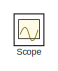
[diagram: root canvas - part 1/3, top left region]
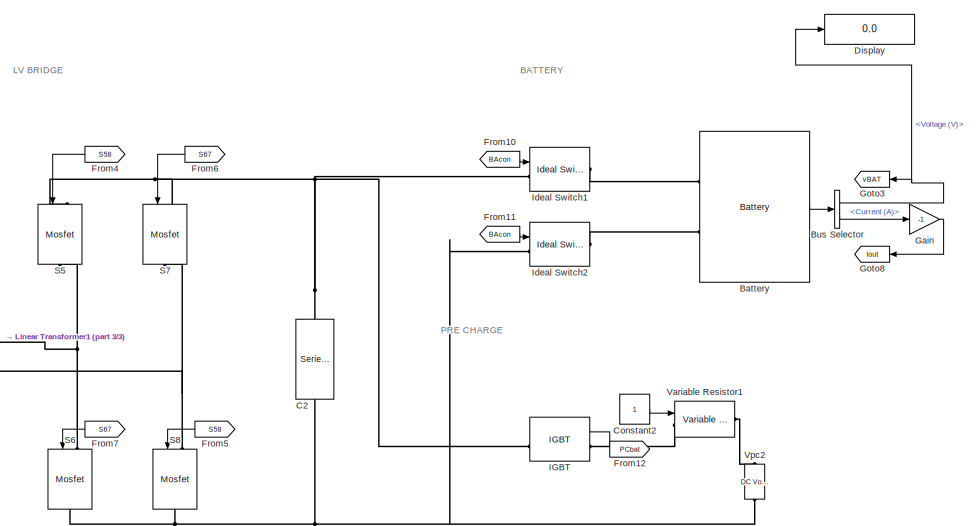
[diagram: root canvas - part 2/3, bottom right region]
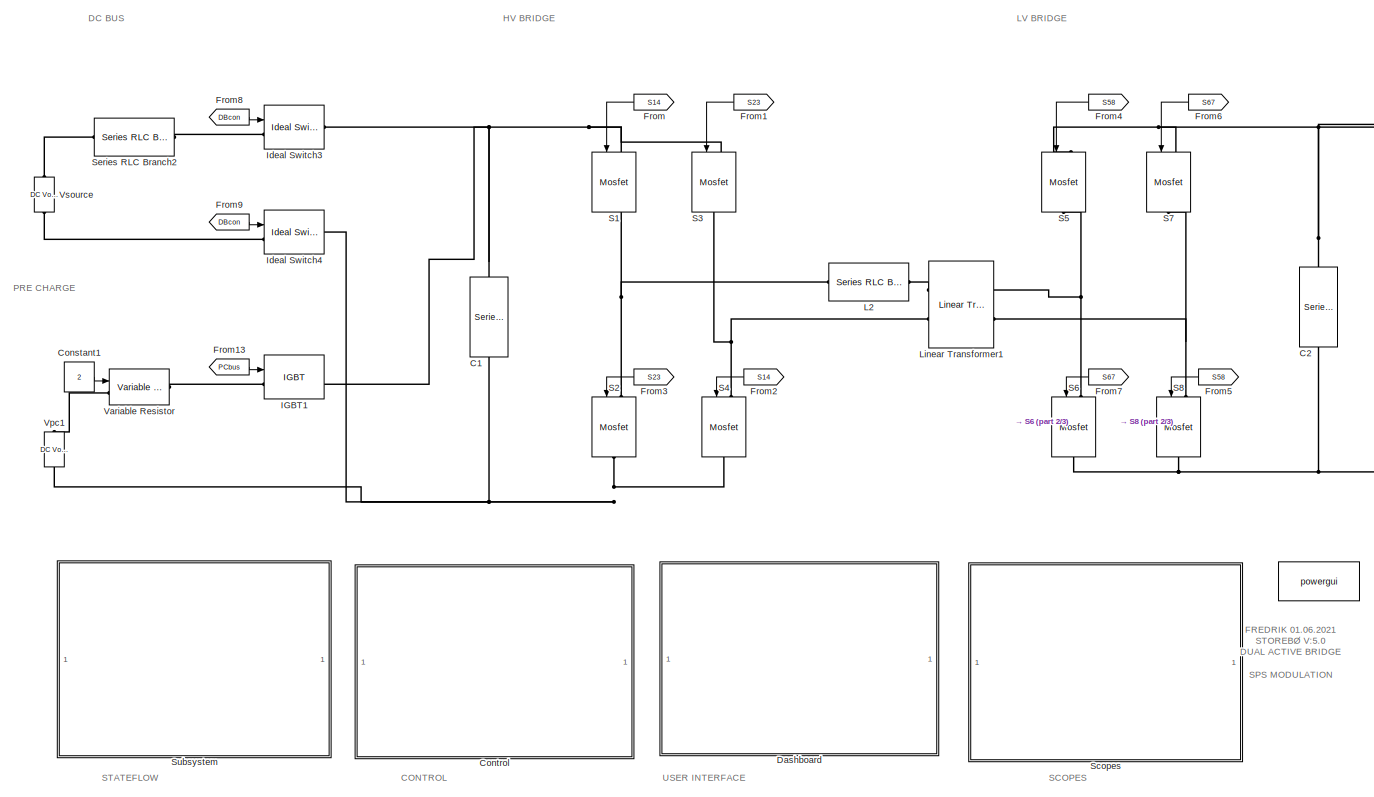
[diagram: root canvas - part 3/3, bottom right region]
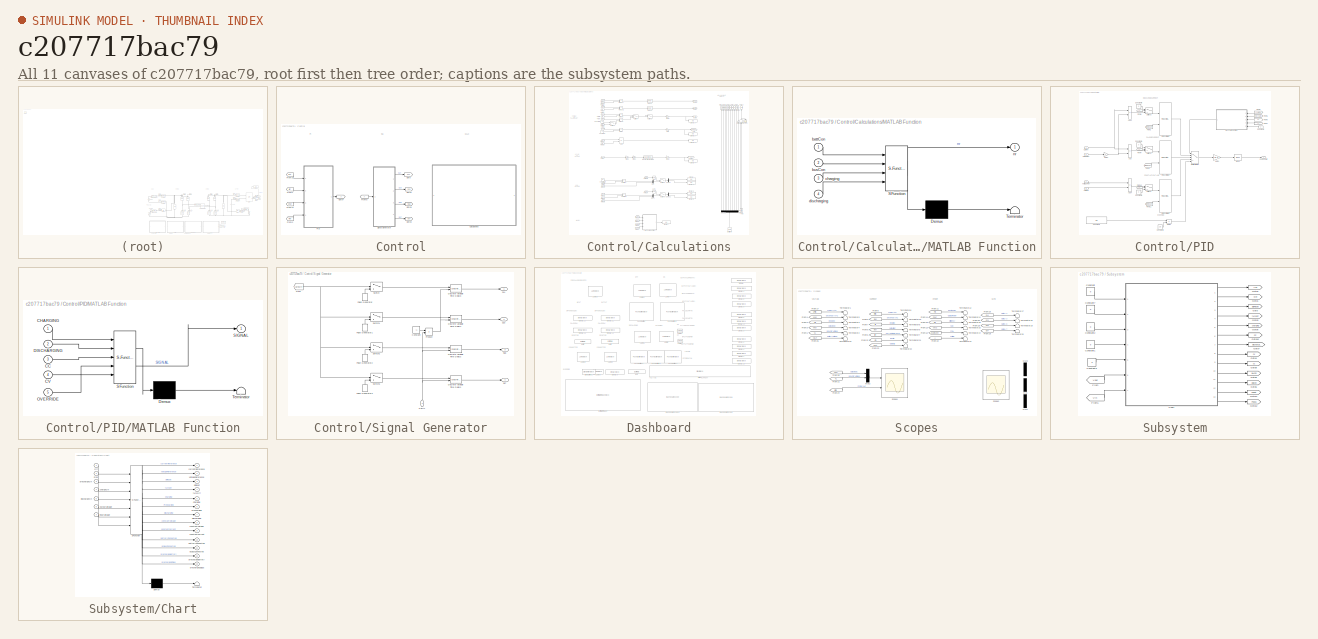
[diagram: thumbnail index - all 11 canvases of the model, root first then tree order]
MODEL slx_c207717bac79
KIND model
CONFIG AbsTol = auto
CONFIG EnableMultiTasking = off
CONFIG FixedStep = auto
CONFIG MaxStep = auto
CONFIG MinStep = auto
CONFIG RelTol = 1e-3
CONFIG SampleTimeConstraint = Unconstrained
CONFIG Solver = VariableStepAuto
CONFIG SolverName = VariableStepAuto
CONFIG StartTime = 0.0
CONFIG StopTime = 1
BLOCK [Reference]    REF=powerlib/powergui
  Ports = []
  Priority = 1
  SourceBlock = powerlib/powergui
  SourceProductBaseCode = PS
  SourceType = PSB option menu block
BLOCK [Reference] Battery  REF=electricdrivelib/Extra Sources/Battery
  Ports = [0, 1, 0, 0, 0, 2]
  SourceBlock = electricdrivelib/Extra Sources/Battery
  SourceProductBaseCode = PS
  SourceType = Battery
BLOCK [BusSelector] Bus Selector
  OutputSignals = Voltage (V),Current (A)
  Ports = [1, 2]
BLOCK [Reference] C1  REF=powerlib/Elements/Series RLC Branch
  NameLocation = left
  Ports = [0, 0, 0, 0, 0, 1, 1]
  SourceBlock = powerlib/Elements/Series RLC Branch
  SourceProductBaseCode = PS
  SourceType = Series RLC Branch
BLOCK [Reference] C2  REF=powerlib/Elements/Series RLC Branch
  NameLocation = right
  Ports = [0, 0, 0, 0, 0, 1, 1]
  SourceBlock = powerlib/Elements/Series RLC Branch
  SourceProductBaseCode = PS
  SourceType = Series RLC Branch
BLOCK [Constant] Constant1
  Value = 2
BLOCK [Constant] Constant2
BLOCK [SubSystem] Control
  Ports = []
  RequestExecContextInheritance = off
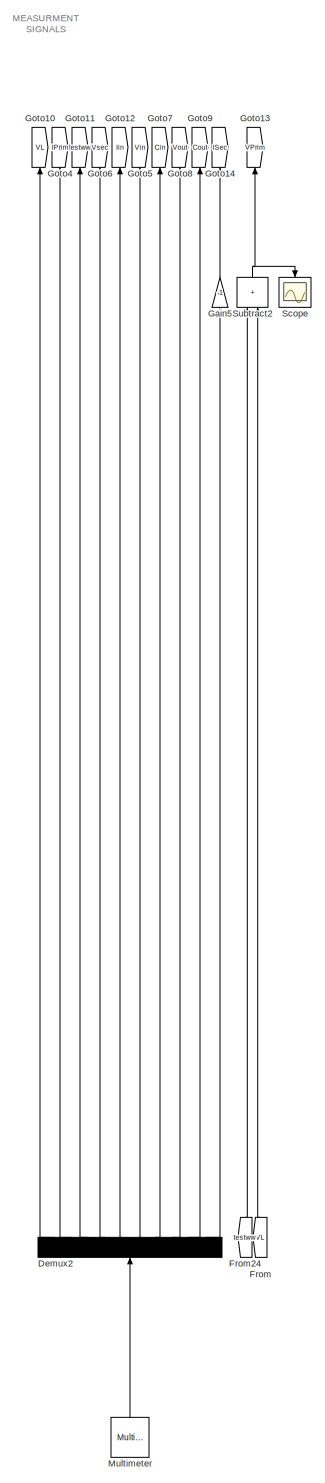
[diagram: Control/Calculations - part 1/3, right side, full height]
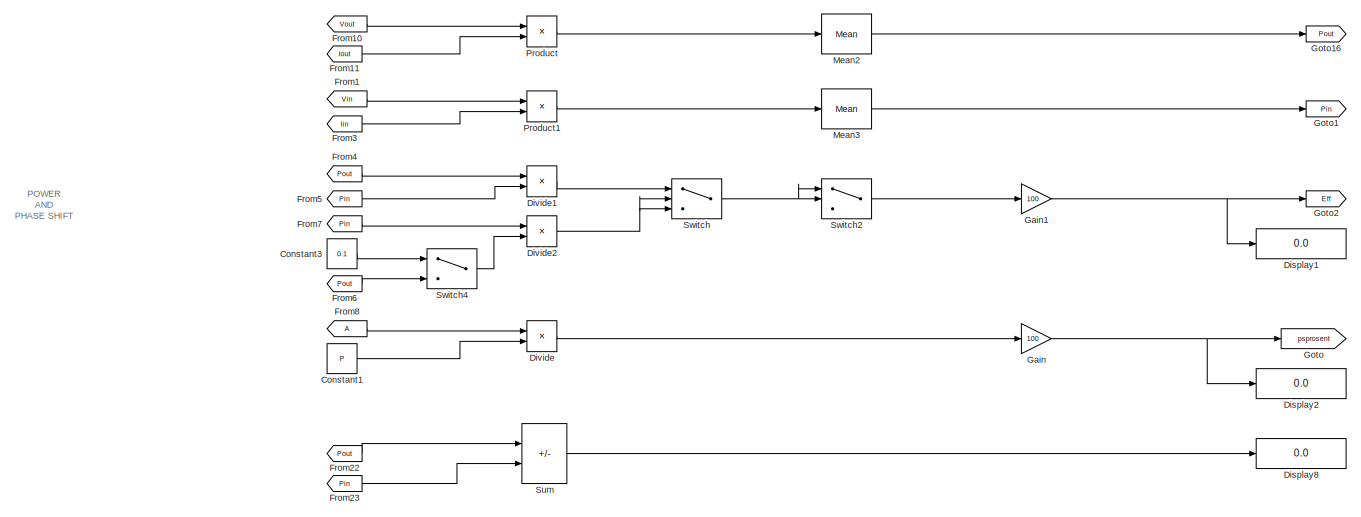
[diagram: Control/Calculations - part 2/3, top center region]
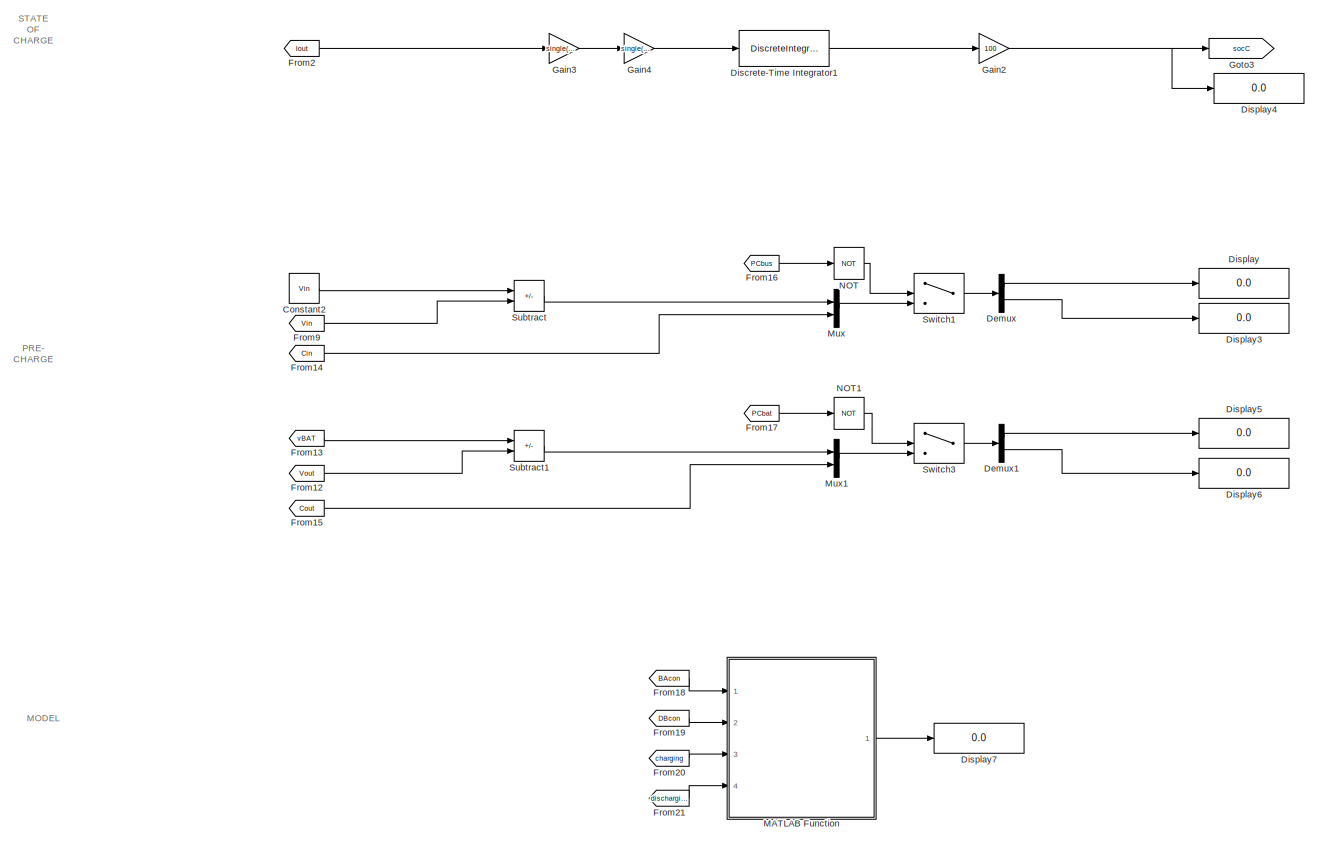
[diagram: Control/Calculations - part 3/3, bottom center region]
BLOCK [SubSystem] Control/Calculations
  Ports = []
  RequestExecContextInheritance = off
BLOCK [Constant] Control/Calculations/Constant1
  Value = P
BLOCK [Constant] Control/Calculations/Constant2
  Value = Vin
BLOCK [Constant] Control/Calculations/Constant3
  Value = 0.1
BLOCK [Demux] Control/Calculations/Demux
  Outputs = 2
  Ports = [1, 2]
BLOCK [Demux] Control/Calculations/Demux1
  Outputs = 2
  Ports = [1, 2]
BLOCK [Demux] Control/Calculations/Demux2
  NameLocation = right
  Outputs = 10
  Ports = [1, 10]
BLOCK [DiscreteIntegrator] Control/Calculations/Discrete-Time Integrator1
  ICPrevOutput = DiscIntNeverNeededParam
  ICPrevScaledInput = DiscIntNeverNeededParam
  InitialCondition = single(SOCInit)
  InitialConditionSetting = Auto
  LimitOutput = on
  LowerSaturationLimit = 0
  Ports = [1, 1]
  SampleTime = -1
  UpperSaturationLimit = 1
BLOCK [Display] Control/Calculations/Display
  Decimation = 1
  Ports = [1]
BLOCK [Display] Control/Calculations/Display1
  Decimation = 1
  Ports = [1]
BLOCK [Display] Control/Calculations/Display2
  Decimation = 1
  Ports = [1]
BLOCK [Display] Control/Calculations/Display3
  Decimation = 1
  Ports = [1]
BLOCK [Display] Control/Calculations/Display4
  Decimation = 1
  Ports = [1]
BLOCK [Display] Control/Calculations/Display5
  Decimation = 1
  Ports = [1]
BLOCK [Display] Control/Calculations/Display6
  Decimation = 1
  Ports = [1]
BLOCK [Display] Control/Calculations/Display7
  Decimation = 1
  Ports = [1]
BLOCK [Display] Control/Calculations/Display8
  Decimation = 1
  Ports = [1]
BLOCK [Product] Control/Calculations/Divide
  Inputs = */
  Ports = [2, 1]
BLOCK [Product] Control/Calculations/Divide1
  Inputs = */
  Ports = [2, 1]
BLOCK [Product] Control/Calculations/Divide2
  Inputs = */
  Ports = [2, 1]
BLOCK [From] Control/Calculations/From
  GotoTag = VL
  NameLocation = right
  TagVisibility = global
BLOCK [From] Control/Calculations/From1
  GotoTag = Vin
  TagVisibility = global
BLOCK [From] Control/Calculations/From10
  GotoTag = Vout
  TagVisibility = global
BLOCK [From] Control/Calculations/From11
  GotoTag = Iout
  TagVisibility = global
BLOCK [From] Control/Calculations/From12
  GotoTag = Vout
  TagVisibility = global
BLOCK [From] Control/Calculations/From13
  GotoTag = vBAT
  TagVisibility = global
BLOCK [From] Control/Calculations/From14
  GotoTag = Cin
  TagVisibility = global
BLOCK [From] Control/Calculations/From15
  GotoTag = Cout
  TagVisibility = global
BLOCK [From] Control/Calculations/From16
  GotoTag = PCbus
  TagVisibility = global
BLOCK [From] Control/Calculations/From17
  GotoTag = PCbat
  TagVisibility = global
BLOCK [From] Control/Calculations/From18
  GotoTag = BAcon
  TagVisibility = global
BLOCK [From] Control/Calculations/From19
  GotoTag = DBcon
  TagVisibility = global
BLOCK [From] Control/Calculations/From2
  GotoTag = Iout
  TagVisibility = global
BLOCK [From] Control/Calculations/From20
  GotoTag = charging
  TagVisibility = global
BLOCK [From] Control/Calculations/From21
  GotoTag = discharging
  TagVisibility = global
BLOCK [From] Control/Calculations/From22
  GotoTag = Pout
  TagVisibility = global
BLOCK [From] Control/Calculations/From23
  GotoTag = Pin
  TagVisibility = global
BLOCK [From] Control/Calculations/From24
  GotoTag = testww
  NameLocation = right
  TagVisibility = global
BLOCK [From] Control/Calculations/From3
  GotoTag = Iin
  TagVisibility = global
BLOCK [From] Control/Calculations/From4
  GotoTag = Pout
  TagVisibility = global
BLOCK [From] Control/Calculations/From5
  GotoTag = Pin
  TagVisibility = global
BLOCK [From] Control/Calculations/From6
  GotoTag = Pout
  TagVisibility = global
BLOCK [From] Control/Calculations/From7
  GotoTag = Pin
  TagVisibility = global
BLOCK [From] Control/Calculations/From8
  TagVisibility = global
BLOCK [From] Control/Calculations/From9
  GotoTag = Vin
  TagVisibility = global
BLOCK [Gain] Control/Calculations/Gain
  Gain = 100
BLOCK [Gain] Control/Calculations/Gain1
  Gain = 100
BLOCK [Gain] Control/Calculations/Gain2
  Gain = 100
BLOCK [Gain] Control/Calculations/Gain3
  Gain = single(1/3600)
BLOCK [Gain] Control/Calculations/Gain4
  Gain = single(1/23.9)
BLOCK [Gain] Control/Calculations/Gain5
  Gain = -1
  NameLocation = right
BLOCK [Goto] Control/Calculations/Goto
  GotoTag = psprosent
  TagVisibility = global
BLOCK [Goto] Control/Calculations/Goto1
  GotoTag = Pin
  TagVisibility = global
BLOCK [Goto] Control/Calculations/Goto10
  GotoTag = VL
  NameLocation = right
  TagVisibility = global
BLOCK [Goto] Control/Calculations/Goto11
  GotoTag = testww
  NameLocation = right
  TagVisibility = global
BLOCK [Goto] Control/Calculations/Goto12
  GotoTag = Iin
  NameLocation = right
  TagVisibility = global
BLOCK [Goto] Control/Calculations/Goto13
  GotoTag = VPrim
  NameLocation = right
  TagVisibility = global
BLOCK [Goto] Control/Calculations/Goto14
  GotoTag = ISec
  NameLocation = right
  TagVisibility = global
BLOCK [Goto] Control/Calculations/Goto16
  GotoTag = Pout
  TagVisibility = global
BLOCK [Goto] Control/Calculations/Goto2
  GotoTag = Eff
  TagVisibility = global
BLOCK [Goto] Control/Calculations/Goto3
  GotoTag = socC
  TagVisibility = global
BLOCK [Goto] Control/Calculations/Goto4
  GotoTag = IPrim
  NameLocation = right
  TagVisibility = global
BLOCK [Goto] Control/Calculations/Goto5
  GotoTag = Vin
  NameLocation = right
  TagVisibility = global
BLOCK [Goto] Control/Calculations/Goto6
  GotoTag = Vsec
  NameLocation = right
  TagVisibility = global
BLOCK [Goto] Control/Calculations/Goto7
  GotoTag = Cin
  NameLocation = right
  TagVisibility = global
BLOCK [Goto] Control/Calculations/Goto8
  GotoTag = Vout
  NameLocation = right
  TagVisibility = global
BLOCK [Goto] Control/Calculations/Goto9
  GotoTag = Cout
  NameLocation = right
  TagVisibility = global
BLOCK [SubSystem] Control/Calculations/MATLAB Function
  ErrorFcn = Stateflow.Translate.translate
  PermitHierarchicalResolution = ExplicitOnly
  Ports = [4, 1]
  RequestExecContextInheritance = off
  SFBlockType = MATLAB Function
  TreatAsAtomicUnit = on
BLOCK [Demux] Control/Calculations/MATLAB Function/ Demux 
  Outputs = 1
  Ports = [1, 1]
BLOCK [S-Function] Control/Calculations/MATLAB Function/ SFunction 
  EnableBusSupport = on
  FunctionName = sf_sfun
  PortCounts = [4 2]
  Ports = [4, 2]
  SFcnIsStateOwnerBlock = off
  SFunctionDeploymentMode = off
  Tag = Stateflow S-Function 1
BLOCK [Terminator] Control/Calculations/MATLAB Function/ Terminator 
BLOCK [Inport] Control/Calculations/MATLAB Function/battCon
BLOCK [Inport] Control/Calculations/MATLAB Function/busCon
  Port = 2
BLOCK [Inport] Control/Calculations/MATLAB Function/charging
  Port = 3
BLOCK [Inport] Control/Calculations/MATLAB Function/discharging
  Port = 4
BLOCK [Outport] Control/Calculations/MATLAB Function/nr
BLOCK [Reference] Control/Calculations/Mean2  REF=powerlib_meascontrol/Measurements/Mean
  Ports = [1, 1]
  SourceBlock = powerlib_meascontrol/Measurements/Mean
  SourceProductBaseCode = PS
  SourceType = Mean
BLOCK [Reference] Control/Calculations/Mean3  REF=powerlib_meascontrol/Measurements/Mean
  Ports = [1, 1]
  SourceBlock = powerlib_meascontrol/Measurements/Mean
  SourceProductBaseCode = PS
  SourceType = Mean
BLOCK [Reference] Control/Calculations/Multimeter  REF=powerlib/Measurements/Multimeter
  NameLocation = right
  Ports = [0, 1]
  SourceBlock = powerlib/Measurements/Multimeter
  SourceProductBaseCode = PS
  SourceType = MultimeterPSB
BLOCK [Mux] Control/Calculations/Mux
  DisplayOption = bar
  Inputs = 2
  Ports = [2, 1]
BLOCK [Mux] Control/Calculations/Mux1
  DisplayOption = bar
  Inputs = 2
  Ports = [2, 1]
BLOCK [Logic] Control/Calculations/NOT
  AllPortsSameDT = off
  IconShape = distinctive
  Operator = NOT
  OutDataTypeStr = boolean
  Ports = [1, 1]
BLOCK [Logic] Control/Calculations/NOT1
  AllPortsSameDT = off
  IconShape = distinctive
  Operator = NOT
  OutDataTypeStr = boolean
  Ports = [1, 1]
BLOCK [Product] Control/Calculations/Product
  Ports = [2, 1]
BLOCK [Product] Control/Calculations/Product1
  Ports = [2, 1]
BLOCK [Scope] Control/Calculations/Scope
  Floating = off
  NameLocation = left
  NumInputPorts = 1
  Ports = [1]
  ScopeSpecificationString = Simulink.scopes.TimeScopeBlockCfg('CurrentConfiguration', extmgr.ConfigurationSet(extmgr.Configuration('Core','General UI',true),extmgr.Configuration('Core','Source UI',true),extmgr.Configuration('Sources','WiredSimulink',true,'DataLoggingVariableName','ScopeData1'),extmgr.Configuration('Visuals','Time Domain',true,'SerializedDisplays',{struct('MinYLimReal','-1.00000','MaxYLimReal','1.00000','YLab...<+1423ch>
BLOCK [Sum] Control/Calculations/Subtract
  IconShape = rectangular
  Inputs = +-
  Ports = [2, 1]
BLOCK [Sum] Control/Calculations/Subtract1
  IconShape = rectangular
  Inputs = +-
  Ports = [2, 1]
BLOCK [Sum] Control/Calculations/Subtract2
  IconShape = rectangular
  NameLocation = right
  Ports = [2, 1]
BLOCK [Sum] Control/Calculations/Sum
  IconShape = rectangular
  Inputs = |+-
  Ports = [2, 1]
BLOCK [Switch] Control/Calculations/Switch
  Criteria = u2 > Threshold
  InputSameDT = off
  SaturateOnIntegerOverflow = off
  Threshold = 1
BLOCK [Switch] Control/Calculations/Switch1
  Criteria = u2 > Threshold
  InputSameDT = off
  SaturateOnIntegerOverflow = off
BLOCK [Switch] Control/Calculations/Switch2
  Criteria = u2 > Threshold
  InputSameDT = off
  SaturateOnIntegerOverflow = off
BLOCK [Switch] Control/Calculations/Switch3
  Criteria = u2 > Threshold
  InputSameDT = off
  SaturateOnIntegerOverflow = off
BLOCK [Switch] Control/Calculations/Switch4
  Criteria = u2 ~= 0
  InputSameDT = off
  SaturateOnIntegerOverflow = off
  Threshold = 1
BLOCK [From] Control/From1
  GotoTag = Iref
  TagVisibility = global
BLOCK [From] Control/From10
  GotoTag = Iout
  TagVisibility = global
BLOCK [From] Control/From12
  GotoTag = Vout
  TagVisibility = global
BLOCK [From] Control/From2
  GotoTag = Vref
  TagVisibility = global
BLOCK [From] Control/From8
  TagVisibility = global
BLOCK [Goto] Control/Goto
  GotoTag = S14
  TagVisibility = global
BLOCK [Goto] Control/Goto1
  GotoTag = S23
  TagVisibility = global
BLOCK [Goto] Control/Goto3
  GotoTag = S67
  TagVisibility = global
BLOCK [Goto] Control/Goto7
  TagVisibility = global
BLOCK [Goto] Control/Goto9
  GotoTag = S58
  TagVisibility = global
BLOCK [SubSystem] Control/PID
  Ports = [4, 1]
  RequestExecContextInheritance = off
BLOCK [Outport] Control/PID/ Phase Shift
BLOCK [Sum] Control/PID/Add
  IconShape = rectangular
  Inputs = -+
  Ports = [2, 1]
BLOCK [Sum] Control/PID/Add2
  IconShape = rectangular
  Inputs = -+
  Ports = [2, 1]
BLOCK [Sum] Control/PID/Add4
  IconShape = rectangular
  Inputs = +-
  Ports = [2, 1]
BLOCK [Constant] Control/PID/Constant1
  Value = 25
BLOCK [Constant] Control/PID/Constant2
  NameLocation = top
  Value = 0
BLOCK [Constant] Control/PID/Constant3
  Value = 2.5
BLOCK [Constant] Control/PID/Constant4
  Value = 0
BLOCK [Constant] Control/PID/Constant5
  Value = 0
BLOCK [Constant] Control/PID/Constant6
  Value = 0
BLOCK [Inport] Control/PID/Current
BLOCK [Inport] Control/PID/Current Ref
  Port = 2
BLOCK [Product] Control/PID/Divide
  Inputs = */
  Ports = [2, 1]
BLOCK [From] Control/PID/From1
  GotoTag = pidReset
  TagVisibility = global
BLOCK [From] Control/PID/From11
  GotoTag = pidReset
  TagVisibility = global
BLOCK [From] Control/PID/From12
  GotoTag = cv
  TagVisibility = global
BLOCK [From] Control/PID/From2
  GotoTag = pidReset
  TagVisibility = global
BLOCK [From] Control/PID/From3
  GotoTag = charging
  NameLocation = top
  TagVisibility = global
BLOCK [From] Control/PID/From4
  GotoTag = cv
  TagVisibility = global
BLOCK [From] Control/PID/From5
  GotoTag = discharging
  NameLocation = top
  TagVisibility = global
BLOCK [From] Control/PID/From6
  GotoTag = cc
  NameLocation = top
  TagVisibility = global
BLOCK [From] Control/PID/From7
  GotoTag = cv
  NameLocation = top
  TagVisibility = global
BLOCK [From] Control/PID/From8
  GotoTag = cv
  TagVisibility = global
BLOCK [Gain] Control/PID/Gain1
  Gain = 1e-6
BLOCK [Gain] Control/PID/Gain2
  Gain = -1
BLOCK [SubSystem] Control/PID/MATLAB Function
  ErrorFcn = Stateflow.Translate.translate
  NameLocation = top
  PermitHierarchicalResolution = ExplicitOnly
  Ports = [5, 1]
  RequestExecContextInheritance = off
  SFBlockType = MATLAB Function
  TreatAsAtomicUnit = on
BLOCK [Demux] Control/PID/MATLAB Function/ Demux 
  Outputs = 1
  Ports = [1, 1]
BLOCK [S-Function] Control/PID/MATLAB Function/ SFunction 
  EnableBusSupport = on
  FunctionName = sf_sfun
  PortCounts = [5 2]
  Ports = [5, 2]
  SFcnIsStateOwnerBlock = off
  SFunctionDeploymentMode = off
  Tag = Stateflow S-Function 2
BLOCK [Terminator] Control/PID/MATLAB Function/ Terminator 
BLOCK [Inport] Control/PID/MATLAB Function/CC
  Port = 3
BLOCK [Inport] Control/PID/MATLAB Function/CHARGING
BLOCK [Inport] Control/PID/MATLAB Function/CV
  Port = 4
BLOCK [Inport] Control/PID/MATLAB Function/DISCHARGING
  Port = 2
BLOCK [Inport] Control/PID/MATLAB Function/OVERRIDE
  Port = 5
BLOCK [Outport] Control/PID/MATLAB Function/SIGNAL
BLOCK [Reference] Control/PID/Mean  REF=powerlib_meascontrol/Measurements/Mean
  Ports = [1, 1]
  SourceBlock = powerlib_meascontrol/Measurements/Mean
  SourceProductBaseCode = PS
  SourceType = Mean
BLOCK [MultiPortSwitch] Control/PID/Multiport Switch
  InputSameDT = off
  Inputs = 4
  Ports = [5, 1]
  SaturateOnIntegerOverflow = off
BLOCK [Reference] Control/PID/PID Controller1  REF=simulink/Continuous/PID Controller
  Ports = [2, 1]
  SourceBlock = simulink/Continuous/PID Controller
  SourceProductBaseCode = SL
  SourceType = PID 1dof
BLOCK [Reference] Control/PID/PID Controller2  REF=simulink/Continuous/PID Controller
  Ports = [2, 1]
  SourceBlock = simulink/Continuous/PID Controller
  SourceProductBaseCode = SL
  SourceType = PID 1dof
BLOCK [Reference] Control/PID/PID Controller3  REF=simulink/Continuous/PID Controller
  Ports = [2, 1]
  SourceBlock = simulink/Continuous/PID Controller
  SourceProductBaseCode = SL
  SourceType = PID 1dof
BLOCK [Switch] Control/PID/Switch1
  Criteria = u2 > Threshold
  InputSameDT = off
  NameLocation = top
  SaturateOnIntegerOverflow = off
BLOCK [Switch] Control/PID/Switch2
  Criteria = u2 > Threshold
  InputSameDT = off
  NameLocation = top
  SaturateOnIntegerOverflow = off
BLOCK [Switch] Control/PID/Switch3
  Criteria = u2 > Threshold
  InputSameDT = off
  NameLocation = top
  SaturateOnIntegerOverflow = off
BLOCK [Inport] Control/PID/Voltage
  Port = 3
BLOCK [Inport] Control/PID/Voltage Ref
  Port = 4
BLOCK [SubSystem] Control/Signal Generator
  Ports = [1, 4]
  RequestExecContextInheritance = off
BLOCK [Constant] Control/Signal Generator/Constant
  Value = -1
BLOCK [Inport] Control/Signal Generator/DELAY
BLOCK [Reference] Control/Signal Generator/Discrete Variable Time Delay1  REF=powerlib_meascontrol/Additional Components/Discrete Variable
Time Delay
  Ports = [2, 1]
  SourceBlock = powerlib_meascontrol/Additional Components/Discrete Variable\nTime Delay
  SourceProductBaseCode = PS
  SourceType = Discrete Variable Time Delay
BLOCK [Reference] Control/Signal Generator/Discrete Variable Time Delay2  REF=powerlib_meascontrol/Additional Components/Discrete Variable
Time Delay
  Ports = [2, 1]
  SourceBlock = powerlib_meascontrol/Additional Components/Discrete Variable\nTime Delay
  SourceProductBaseCode = PS
  SourceType = Discrete Variable Time Delay
BLOCK [Reference] Control/Signal Generator/Discrete Variable Time Delay3  REF=powerlib_meascontrol/Additional Components/Discrete Variable
Time Delay
  Ports = [2, 1]
  SourceBlock = powerlib_meascontrol/Additional Components/Discrete Variable\nTime Delay
  SourceProductBaseCode = PS
  SourceType = Discrete Variable Time Delay
BLOCK [Reference] Control/Signal Generator/Discrete Variable Time Delay4  REF=powerlib_meascontrol/Additional Components/Discrete Variable
Time Delay
  Ports = [2, 1]
  SourceBlock = powerlib_meascontrol/Additional Components/Discrete Variable\nTime Delay
  SourceProductBaseCode = PS
  SourceType = Discrete Variable Time Delay
BLOCK [From] Control/Signal Generator/From
  GotoTag = turnOff
  TagVisibility = global
BLOCK [Product] Control/Signal Generator/Product
  Ports = [2, 1]
BLOCK [DiscretePulseGenerator] Control/Signal Generator/Pulse Generator
  NameLocation = right
  Period = P
  Ports = [0, 1]
  PulseType = Time based
  PulseWidth = 49.5
  VectorParams1D = off
BLOCK [DiscretePulseGenerator] Control/Signal Generator/Pulse Generator1
  NameLocation = right
  Period = P
  PhaseDelay = P/2
  Ports = [0, 1]
  PulseType = Time based
  PulseWidth = 49.5
  VectorParams1D = off
BLOCK [DiscretePulseGenerator] Control/Signal Generator/Pulse Generator2
  NameLocation = right
  Period = P
  Ports = [0, 1]
  PulseType = Time based
  PulseWidth = 49.5
BLOCK [DiscretePulseGenerator] Control/Signal Generator/Pulse Generator3
  NameLocation = right
  Period = P
  PhaseDelay = P/2
  Ports = [0, 1]
  PulseType = Time based
  PulseWidth = 49.5
BLOCK [Outport] Control/Signal Generator/S14
  NameLocation = right
BLOCK [Outport] Control/Signal Generator/S23
  NameLocation = right
  Port = 2
BLOCK [Outport] Control/Signal Generator/S58
  NameLocation = right
  Port = 3
BLOCK [Outport] Control/Signal Generator/S67
  NameLocation = right
  Port = 4
BLOCK [Switch] Control/Signal Generator/Switch
  Criteria = u2 > Threshold
  InputSameDT = off
  SaturateOnIntegerOverflow = off
BLOCK [Switch] Control/Signal Generator/Switch1
  Criteria = u2 > Threshold
  InputSameDT = off
  SaturateOnIntegerOverflow = off
BLOCK [Switch] Control/Signal Generator/Switch2
  Criteria = u2 > Threshold
  InputSameDT = off
  SaturateOnIntegerOverflow = off
BLOCK [Switch] Control/Signal Generator/Switch3
  Criteria = u2 > Threshold
  InputSameDT = off
  SaturateOnIntegerOverflow = off
BLOCK [SubSystem] Dashboard
  Ports = []
  RequestExecContextInheritance = off
BLOCK [DashboardScope] Dashboard/Dashboard Scope
  ScaleAtStop = off
  ShowInitialText = off
  TimeSpan = 1
  Ymax = 5
  Ymin = -11
BLOCK [DashboardScope] Dashboard/Dashboard Scope1
  ScaleAtStop = off
  TimeSpan = 1
  Ymax = 200
  Ymin = 160
BLOCK [DisplayBlock] Dashboard/Display
  Format = short
  LabelPosition = Hide
  Transparency = 1
BLOCK [DisplayBlock] Dashboard/Display1
  Format = short
  LabelPosition = Hide
  Transparency = 1
BLOCK [DisplayBlock] Dashboard/Display10
  Format = short
  LabelPosition = Hide
  Transparency = 1
BLOCK [DisplayBlock] Dashboard/Display11
  Format = short
  LabelPosition = Hide
  Transparency = 1
BLOCK [DisplayBlock] Dashboard/Display12
  Format = short
  LabelPosition = Hide
  Transparency = 1
BLOCK [DisplayBlock] Dashboard/Display13
  Format = short
  LabelPosition = Hide
  Transparency = 1
BLOCK [DisplayBlock] Dashboard/Display14
  Format = short
  LabelPosition = Hide
  Transparency = 1
BLOCK [DisplayBlock] Dashboard/Display15
  Format = short
  LabelPosition = Hide
  Transparency = 1
BLOCK [DisplayBlock] Dashboard/Display2
  Format = short
  LabelPosition = Hide
  Transparency = 1
BLOCK [DisplayBlock] Dashboard/Display3
  Format = short
  LabelPosition = Hide
  Transparency = 1
BLOCK [DisplayBlock] Dashboard/Display4
  Format = short
  LabelPosition = Hide
  Transparency = 1
BLOCK [DisplayBlock] Dashboard/Display5
  Format = short
  LabelPosition = Hide
  Transparency = 1
BLOCK [DisplayBlock] Dashboard/Display6
  Format = short
  LabelPosition = Hide
  Transparency = 1
BLOCK [DisplayBlock] Dashboard/Display7
  Format = short
  LabelPosition = Hide
  Transparency = 1
BLOCK [DisplayBlock] Dashboard/Display8
  Format = short
  LabelPosition = Hide
  Transparency = 1
BLOCK [DisplayBlock] Dashboard/Display9
  Format = short
  LabelPosition = Hide
  Transparency = 1
BLOCK [EditField] Dashboard/Edit
  Alignment = Center
  LabelPosition = Hide
  ShowInitialText = on
BLOCK [EditField] Dashboard/Edit1
  Alignment = Center
  LabelPosition = Hide
  ShowInitialText = on
BLOCK [EditField] Dashboard/Edit2
  Alignment = Center
  LabelPosition = Hide
  ShowInitialText = on
BLOCK [LampBlock] Dashboard/Lamp
  LabelPosition = Hide
BLOCK [LampBlock] Dashboard/Lamp1
  LabelPosition = Hide
BLOCK [LampBlock] Dashboard/Lamp2
  LabelPosition = Hide
BLOCK [LampBlock] Dashboard/Lamp3
  LabelPosition = Hide
BLOCK [LampBlock] Dashboard/Lamp4
  LabelPosition = Hide
BLOCK [LampBlock] Dashboard/Lamp5
  LabelPosition = Hide
BLOCK [LampBlock] Dashboard/Lamp6
  LabelPosition = Hide
BLOCK [LampBlock] Dashboard/Lamp7
  LabelPosition = Hide
BLOCK [LampBlock] Dashboard/Lamp8
  LabelPosition = Hide
BLOCK [LampBlock] Dashboard/Lamp9
  LabelPosition = Hide
BLOCK [MultiStateImageBlock] Dashboard/MultiStateImage
  LabelPosition = Hide
  NameLocation = top
BLOCK [PushButtonBlock] Dashboard/Push Button
  ButtonText = DISCONNECT
BLOCK [PushButtonBlock] Dashboard/Push Button1
  ButtonText = CHARGE
BLOCK [PushButtonBlock] Dashboard/Push Button2
  ButtonText = CONNECT
BLOCK [PushButtonBlock] Dashboard/Push Button3
  ButtonText = DISCHARGE
BLOCK [PushButtonBlock] Dashboard/Push Button4
  ButtonText = STOP
BLOCK [SliderSwitchBlock] Dashboard/Slider Switch2
  LabelPosition = Hide
BLOCK [SliderBlock] Dashboard/Slider3
  LabelPosition = Hide
  ScaleMax = 50
  ScaleMin = -50
  TickInterval = 5
BLOCK [Display] Display
  Decimation = 1
  Ports = [1]
BLOCK [From] From
  GotoTag = S14
  NameLocation = top
  TagVisibility = global
BLOCK [From] From1
  GotoTag = S23
  NameLocation = top
  TagVisibility = global
BLOCK [From] From10
  GotoTag = BAcon
  TagVisibility = global
BLOCK [From] From11
  GotoTag = BAcon
  TagVisibility = global
BLOCK [From] From12
  GotoTag = PCbat
  NameLocation = top
  TagVisibility = global
BLOCK [From] From13
  GotoTag = PCbus
  TagVisibility = global
BLOCK [From] From2
  GotoTag = S14
  NameLocation = top
  TagVisibility = global
BLOCK [From] From3
  GotoTag = S23
  NameLocation = top
  TagVisibility = global
BLOCK [From] From4
  GotoTag = S58
  NameLocation = top
  TagVisibility = global
BLOCK [From] From5
  GotoTag = S58
  NameLocation = top
  TagVisibility = global
BLOCK [From] From6
  GotoTag = S67
  NameLocation = top
  TagVisibility = global
BLOCK [From] From7
  GotoTag = S67
  NameLocation = top
  TagVisibility = global
BLOCK [From] From8
  GotoTag = DBcon
  TagVisibility = global
BLOCK [From] From9
  GotoTag = DBcon
  TagVisibility = global
BLOCK [Gain] Gain
  Gain = -1
BLOCK [Goto] Goto3
  GotoTag = vBAT
  NameLocation = top
  TagVisibility = global
BLOCK [Goto] Goto8
  GotoTag = Iout
  NameLocation = top
  TagVisibility = global
BLOCK [Reference] IGBT  REF=powerlib/Power
Electronics/IGBT
  NameLocation = top
  Ports = [1, 1, 0, 0, 0, 1, 1]
  SourceBlock = powerlib/Power\nElectronics/IGBT
  SourceProductBaseCode = PS
  SourceType = IGBT
BLOCK [Reference] IGBT1  REF=powerlib/Power
Electronics/IGBT
  Ports = [1, 1, 0, 0, 0, 1, 1]
  SourceBlock = powerlib/Power\nElectronics/IGBT
  SourceProductBaseCode = PS
  SourceType = IGBT
BLOCK [Reference] Ideal Switch1  REF=powerlib/Power
Electronics/Ideal Switch
  Ports = [1, 0, 0, 0, 0, 1, 1]
  SourceBlock = powerlib/Power\nElectronics/Ideal Switch
  SourceProductBaseCode = PS
  SourceType = Ideal Switch
BLOCK [Reference] Ideal Switch2  REF=powerlib/Power
Electronics/Ideal Switch
  Ports = [1, 0, 0, 0, 0, 1, 1]
  SourceBlock = powerlib/Power\nElectronics/Ideal Switch
  SourceProductBaseCode = PS
  SourceType = Ideal Switch
BLOCK [Reference] Ideal Switch3  REF=powerlib/Power
Electronics/Ideal Switch
  Ports = [1, 0, 0, 0, 0, 1, 1]
  SourceBlock = powerlib/Power\nElectronics/Ideal Switch
  SourceProductBaseCode = PS
  SourceType = Ideal Switch
BLOCK [Reference] Ideal Switch4  REF=powerlib/Power
Electronics/Ideal Switch
  Ports = [1, 0, 0, 0, 0, 1, 1]
  SourceBlock = powerlib/Power\nElectronics/Ideal Switch
  SourceProductBaseCode = PS
  SourceType = Ideal Switch
BLOCK [Reference] L2  REF=powerlib/Elements/Series RLC Branch
  Ports = [0, 0, 0, 0, 0, 1, 1]
  SourceBlock = powerlib/Elements/Series RLC Branch
  SourceProductBaseCode = PS
  SourceType = Series RLC Branch
BLOCK [Reference] Linear Transformer1  REF=powerlib/Elements/Linear Transformer
  Ports = [0, 0, 0, 0, 0, 2, 2]
  SourceBlock = powerlib/Elements/Linear Transformer
  SourceProductBaseCode = PS
  SourceType = Linear Transformer
BLOCK [Reference] S1  REF=powerlib/Power
Electronics/Mosfet
  NameLocation = left
  Ports = [1, 1, 0, 0, 0, 1, 1]
  SourceBlock = powerlib/Power\nElectronics/Mosfet
  SourceProductBaseCode = PS
  SourceType = Mosfet
BLOCK [Reference] S2  REF=powerlib/Power
Electronics/Mosfet
  NameLocation = left
  Ports = [1, 0, 0, 0, 0, 1, 1]
  SourceBlock = powerlib/Power\nElectronics/Mosfet
  SourceProductBaseCode = PS
  SourceType = Mosfet
BLOCK [Reference] S3  REF=powerlib/Power
Electronics/Mosfet
  NameLocation = left
  Ports = [1, 0, 0, 0, 0, 1, 1]
  SourceBlock = powerlib/Power\nElectronics/Mosfet
  SourceProductBaseCode = PS
  SourceType = Mosfet
BLOCK [Reference] S4  REF=powerlib/Power
Electronics/Mosfet
  NameLocation = left
  Ports = [1, 0, 0, 0, 0, 1, 1]
  SourceBlock = powerlib/Power\nElectronics/Mosfet
  SourceProductBaseCode = PS
  SourceType = Mosfet
BLOCK [Reference] S5  REF=powerlib/Power
Electronics/Mosfet
  NameLocation = left
  Ports = [1, 0, 0, 0, 0, 1, 1]
  SourceBlock = powerlib/Power\nElectronics/Mosfet
  SourceProductBaseCode = PS
  SourceType = Mosfet
BLOCK [Reference] S6  REF=powerlib/Power
Electronics/Mosfet
  NameLocation = left
  Ports = [1, 0, 0, 0, 0, 1, 1]
  SourceBlock = powerlib/Power\nElectronics/Mosfet
  SourceProductBaseCode = PS
  SourceType = Mosfet
BLOCK [Reference] S7  REF=powerlib/Power
Electronics/Mosfet
  NameLocation = left
  Ports = [1, 0, 0, 0, 0, 1, 1]
  SourceBlock = powerlib/Power\nElectronics/Mosfet
  SourceProductBaseCode = PS
  SourceType = Mosfet
BLOCK [Reference] S8  REF=powerlib/Power
Electronics/Mosfet
  NameLocation = left
  Ports = [1, 0, 0, 0, 0, 1, 1]
  SourceBlock = powerlib/Power\nElectronics/Mosfet
  SourceProductBaseCode = PS
  SourceType = Mosfet
BLOCK [Scope] Scope
  Floating = off
  IOType = viewer
  NumInputPorts = 1
  Ports = []
  ScopeSpecificationString = Simulink.scopes.TimeScopeBlockCfg('CurrentConfiguration', extmgr.ConfigurationSet(extmgr.Configuration('Core','General UI',true),extmgr.Configuration('Core','Source UI',true),extmgr.Configuration('Sources','WiredSimulink',true,'DataLoggingVariableName','ScopeData2'),extmgr.Configuration('Visuals','Time Domain',true,'SerializedDisplays',{struct('MinYLimReal','-10.00000','MaxYLimReal','10.00000','YL...<+1365ch>
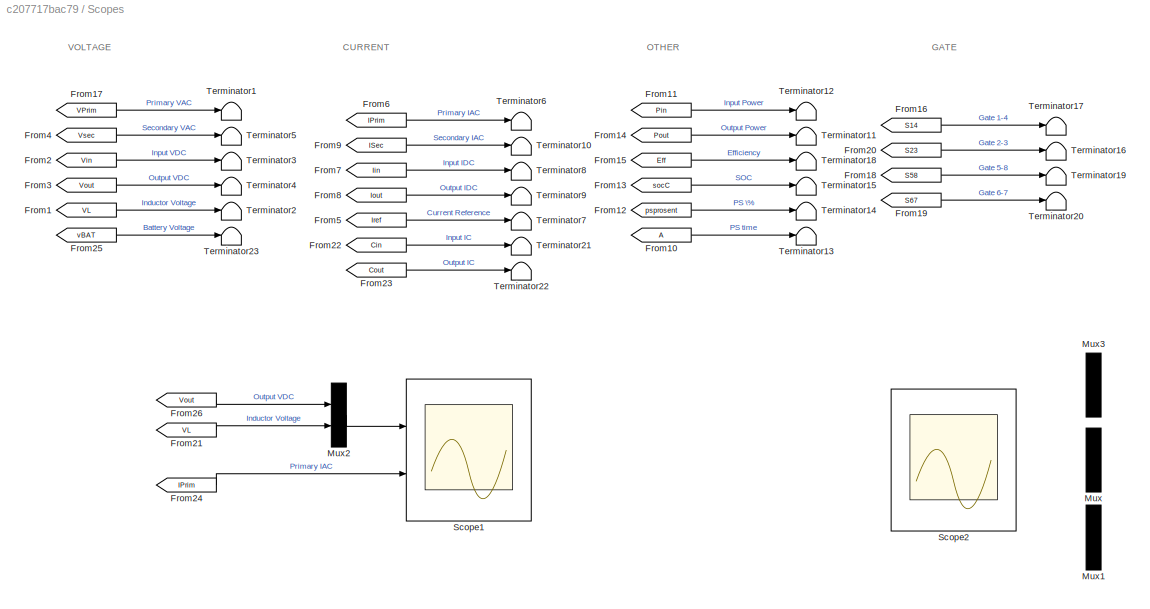
BLOCK [SubSystem] Scopes
  Ports = []
  RequestExecContextInheritance = off
BLOCK [From] Scopes/From1
  GotoTag = VL
  TagVisibility = global
BLOCK [From] Scopes/From10
  TagVisibility = global
BLOCK [From] Scopes/From11
  GotoTag = Pin
  TagVisibility = global
BLOCK [From] Scopes/From12
  GotoTag = psprosent
  TagVisibility = global
BLOCK [From] Scopes/From13
  GotoTag = socC
  TagVisibility = global
BLOCK [From] Scopes/From14
  GotoTag = Pout
  TagVisibility = global
BLOCK [From] Scopes/From15
  GotoTag = Eff
  TagVisibility = global
BLOCK [From] Scopes/From16
  GotoTag = S14
  TagVisibility = global
BLOCK [From] Scopes/From17
  GotoTag = VPrim
  TagVisibility = global
BLOCK [From] Scopes/From18
  GotoTag = S58
  TagVisibility = global
BLOCK [From] Scopes/From19
  GotoTag = S67
  TagVisibility = global
BLOCK [From] Scopes/From2
  GotoTag = Vin
  TagVisibility = global
BLOCK [From] Scopes/From20
  GotoTag = S23
  TagVisibility = global
BLOCK [From] Scopes/From21
  GotoTag = VL
  TagVisibility = global
BLOCK [From] Scopes/From22
  GotoTag = Cin
  TagVisibility = global
BLOCK [From] Scopes/From23
  GotoTag = Cout
  TagVisibility = global
BLOCK [From] Scopes/From24
  GotoTag = IPrim
  TagVisibility = global
BLOCK [From] Scopes/From25
  GotoTag = vBAT
  TagVisibility = global
BLOCK [From] Scopes/From26
  GotoTag = Vout
  TagVisibility = global
BLOCK [From] Scopes/From3
  GotoTag = Vout
  TagVisibility = global
BLOCK [From] Scopes/From4
  GotoTag = Vsec
  TagVisibility = global
BLOCK [From] Scopes/From5
  GotoTag = Iref
  TagVisibility = global
BLOCK [From] Scopes/From6
  GotoTag = IPrim
  TagVisibility = global
BLOCK [From] Scopes/From7
  GotoTag = Iin
  TagVisibility = global
BLOCK [From] Scopes/From8
  GotoTag = Iout
  TagVisibility = global
BLOCK [From] Scopes/From9
  GotoTag = ISec
  TagVisibility = global
BLOCK [Mux] Scopes/Mux
  DisplayOption = bar
  Inputs = 3
  Ports = [3, 1]
BLOCK [Mux] Scopes/Mux1
  DisplayOption = bar
  Ports = [4, 1]
BLOCK [Mux] Scopes/Mux2
  DisplayOption = bar
  Inputs = 2
  Ports = [2, 1]
BLOCK [Mux] Scopes/Mux3
  DisplayOption = bar
  Inputs = 2
  Ports = [2, 1]
BLOCK [Scope] Scopes/Scope1
  Floating = off
  NumInputPorts = 2
  Ports = [2]
  ScopeSpecificationString = Simulink.scopes.TimeScopeBlockCfg('CurrentConfiguration', extmgr.ConfigurationSet(extmgr.Configuration('Core','General UI',true,'FigureColor',[1 1 1]),extmgr.Configuration('Core','Source UI',true),extmgr.Configuration('Sources','WiredSimulink',true,'DataLoggingVariableName','current','DataLoggingMaxPoints','20000','DataLoggingDecimation','167'),extmgr.Configuration('Visuals','Time Domain',true,'Se...<+1840ch>
BLOCK [Scope] Scopes/Scope2
  Floating = off
  NumInputPorts = 1
  Ports = [1]
  ScopeSpecificationString = Simulink.scopes.TimeScopeBlockCfg('CurrentConfiguration', extmgr.ConfigurationSet(extmgr.Configuration('Core','General UI',true,'FigureColor',[1 1 1]),extmgr.Configuration('Core','Source UI',true),extmgr.Configuration('Sources','WiredSimulink',true,'DataLoggingVariableName','phaseShift','DataLoggingMaxPoints','10000','DataLoggingDecimation','40','DataLogging',true,'DataLoggingDecimateData',true),e...<+1802ch>
BLOCK [Terminator] Scopes/Terminator1
BLOCK [Terminator] Scopes/Terminator10
BLOCK [Terminator] Scopes/Terminator11
BLOCK [Terminator] Scopes/Terminator12
BLOCK [Terminator] Scopes/Terminator13
BLOCK [Terminator] Scopes/Terminator14
BLOCK [Terminator] Scopes/Terminator15
BLOCK [Terminator] Scopes/Terminator16
BLOCK [Terminator] Scopes/Terminator17
BLOCK [Terminator] Scopes/Terminator18
BLOCK [Terminator] Scopes/Terminator19
BLOCK [Terminator] Scopes/Terminator2
BLOCK [Terminator] Scopes/Terminator20
BLOCK [Terminator] Scopes/Terminator21
BLOCK [Terminator] Scopes/Terminator22
BLOCK [Terminator] Scopes/Terminator23
BLOCK [Terminator] Scopes/Terminator3
BLOCK [Terminator] Scopes/Terminator4
BLOCK [Terminator] Scopes/Terminator5
BLOCK [Terminator] Scopes/Terminator6
BLOCK [Terminator] Scopes/Terminator7
BLOCK [Terminator] Scopes/Terminator8
BLOCK [Terminator] Scopes/Terminator9
BLOCK [Reference] Series RLC Branch2  REF=powerlib/Elements/Series RLC Branch
  Ports = [0, 0, 0, 0, 0, 1, 1]
  SourceBlock = powerlib/Elements/Series RLC Branch
  SourceProductBaseCode = PS
  SourceType = Series RLC Branch
BLOCK [SubSystem] Subsystem
  Ports = []
  RequestExecContextInheritance = off
BLOCK [SubSystem] Subsystem/Chart
  ErrorFcn = Stateflow.Translate.translate
  PermitHierarchicalResolution = ExplicitOnly
  Ports = [7, 13]
  RequestExecContextInheritance = off
  SFBlockType = Chart
  TreatAsAtomicUnit = on
BLOCK [Demux] Subsystem/Chart/ Demux 
  Outputs = 1
  Ports = [1, 1]
BLOCK [S-Function] Subsystem/Chart/ SFunction 
  EnableBusSupport = on
  FunctionName = sf_sfun
  Parameters = 0
  PortCounts = [7 14]
  Ports = [7, 14]
  SFcnIsStateOwnerBlock = off
  SFunctionDeploymentMode = off
  Tag = Stateflow S-Function 3
BLOCK [Terminator] Subsystem/Chart/ Terminator 
BLOCK [Outport] Subsystem/Chart/Charging
  Port = 5
BLOCK [Outport] Subsystem/Chart/Discharging
  Port = 7
BLOCK [Inport] Subsystem/Chart/Off
BLOCK [Outport] Subsystem/Chart/PreCharging
  Port = 6
BLOCK [Outport] Subsystem/Chart/batteryConnected
  Port = 10
BLOCK [Inport] Subsystem/Chart/chargeOn
  Port = 4
BLOCK [Outport] Subsystem/Chart/constantCurrent
  Port = 9
BLOCK [Outport] Subsystem/Chart/constantVoltage
  Port = 8
BLOCK [Outport] Subsystem/Chart/currentReference
BLOCK [Outport] Subsystem/Chart/dcBusConnected
  Port = 11
BLOCK [Inport] Subsystem/Chart/dischargeOn
  Port = 5
BLOCK [Inport] Subsystem/Chart/inputVoltage
  Port = 7
BLOCK [Inport] Subsystem/Chart/outputVoltage
  Port = 6
BLOCK [Outport] Subsystem/Chart/piReset
  Port = 3
BLOCK [Outport] Subsystem/Chart/prechargeBattery
  Port = 12
BLOCK [Outport] Subsystem/Chart/prechargeDCBus
  Port = 13
BLOCK [Inport] Subsystem/Chart/prechargeOn
  Port = 3
BLOCK [Inport] Subsystem/Chart/stop
  Port = 2
BLOCK [Outport] Subsystem/Chart/turnOff
  Port = 4
BLOCK [Outport] Subsystem/Chart/voltageReference
  Port = 2
BLOCK [Constant] Subsystem/Constant
  Value = 0
BLOCK [Constant] Subsystem/Constant1
  Value = 0
BLOCK [Constant] Subsystem/Constant2
  Value = 0
BLOCK [Constant] Subsystem/Constant3
  Value = 0
BLOCK [Constant] Subsystem/Constant7
  Value = 0
BLOCK [From] Subsystem/From
  GotoTag = Vout
  TagVisibility = global
BLOCK [From] Subsystem/From1
  GotoTag = Vin
  TagVisibility = global
BLOCK [Goto] Subsystem/Goto
  GotoTag = pidReset
  TagVisibility = global
BLOCK [Goto] Subsystem/Goto1
  GotoTag = Vref
  TagVisibility = global
BLOCK [Goto] Subsystem/Goto10
  GotoTag = PC
  TagVisibility = global
BLOCK [Goto] Subsystem/Goto11
  GotoTag = PCbat
  TagVisibility = global
BLOCK [Goto] Subsystem/Goto12
  GotoTag = PCbus
  TagVisibility = global
BLOCK [Goto] Subsystem/Goto2
  GotoTag = Iref
  TagVisibility = global
BLOCK [Goto] Subsystem/Goto3
  GotoTag = turnOff
  TagVisibility = global
BLOCK [Goto] Subsystem/Goto4
  GotoTag = cv
  TagVisibility = global
BLOCK [Goto] Subsystem/Goto5
  GotoTag = DBcon
  TagVisibility = global
BLOCK [Goto] Subsystem/Goto6
  GotoTag = charging
  TagVisibility = global
BLOCK [Goto] Subsystem/Goto7
  GotoTag = discharging
  TagVisibility = global
BLOCK [Goto] Subsystem/Goto8
  GotoTag = cc
  TagVisibility = global
BLOCK [Goto] Subsystem/Goto9
  GotoTag = BAcon
  TagVisibility = global
BLOCK [Reference] Variable Resistor  REF=powerlib/Elements/Variable Resistor
  Ports = [1, 0, 0, 0, 0, 1, 1]
  SourceBlock = powerlib/Elements/Variable Resistor
  SourceProductBaseCode = PS
  SourceType = Variable Resistor
BLOCK [Reference] Variable Resistor1  REF=powerlib/Elements/Variable Resistor
  Ports = [1, 0, 0, 0, 0, 1, 1]
  SourceBlock = powerlib/Elements/Variable Resistor
  SourceProductBaseCode = PS
  SourceType = Variable Resistor
BLOCK [Reference] Vpc1  REF=powerlib/Electrical
Sources/DC Voltage Source
  NameLocation = right
  Ports = [0, 0, 0, 0, 0, 1, 1]
  SourceBlock = powerlib/Electrical\nSources/DC Voltage Source
  SourceProductBaseCode = PS
  SourceType = DC Voltage Source
BLOCK [Reference] Vpc2  REF=powerlib/Electrical
Sources/DC Voltage Source
  NameLocation = right
  Ports = [0, 0, 0, 0, 0, 1, 1]
  SourceBlock = powerlib/Electrical\nSources/DC Voltage Source
  SourceProductBaseCode = PS
  SourceType = DC Voltage Source
BLOCK [Reference] Vsource  REF=powerlib/Electrical
Sources/DC Voltage Source
  NameLocation = right
  Ports = [0, 0, 0, 0, 0, 1, 1]
  SourceBlock = powerlib/Electrical\nSources/DC Voltage Source
  SourceProductBaseCode = PS
  SourceType = DC Voltage Source
ANNOTATION (root): FREDRIK 01.06.2021 STOREBØ V:5.0 DUAL ACTIVE BRIDGE SPS MODULATION
ANNOTATION (root): CONTROL
ANNOTATION (root): SCOPES
ANNOTATION (root): STATEFLOW
ANNOTATION (root): USER INTERFACE
ANNOTATION (root): BATTERY
ANNOTATION (root): DC BUS
ANNOTATION (root): HV BRIDGE
ANNOTATION (root): LV BRIDGE
ANNOTATION (root): PRE CHARGE
ANNOTATION Control: CALC
ANNOTATION Control: PI
ANNOTATION Control: SG
ANNOTATION Control/Calculations: POWER AND PHASE SHIFT
ANNOTATION Control/Calculations: PRE- CHARGE
ANNOTATION Control/Calculations: STATE OF CHARGE
ANNOTATION Control/Calculations: MEASURMENT SIGNALS
ANNOTATION Control/Calculations: MODEL
ANNOTATION Control/PID: CHARGE CURRENT
ANNOTATION Control/PID: CONSTANT VOLTAGE
ANNOTATION Control/PID: DISCHARGE CURRENT
ANNOTATION Control/PID: OVERRIDE
ANNOTATION Dashboard: CC
ANNOTATION Dashboard: CHARGE [A]
ANNOTATION Dashboard: CHARGING
ANNOTATION Dashboard: CONNECTED
ANNOTATION Dashboard: CV
ANNOTATION Dashboard: DIFFERENCE [V]
ANNOTATION Dashboard: DISCHARGING
ANNOTATION Dashboard: RESISTOR
ANNOTATION Dashboard: INPUT
ANNOTATION Dashboard: OUTPUT
ANNOTATION Dashboard: PRECHARGE CIRCUITRY
ANNOTATION Dashboard: EFFICIENCY (%)
ANNOTATION Dashboard: INPUT CURRENT (A)
ANNOTATION Dashboard: INPUT POWER (W)
ANNOTATION Dashboard: INPUT VOLTAGE (V)
ANNOTATION Dashboard: LOSS (W)
ANNOTATION Dashboard: OUTPUT CURRENT (A)
ANNOTATION Dashboard: OUTPUT POWER (W)
ANNOTATION Dashboard: OUTPUT VOLTAGE (V)
ANNOTATION Dashboard: OVERRIDE
ANNOTATION Dashboard: PHASE SHIFT ( %)
ANNOTATION Dashboard: PHASE SHIFT (S )
ANNOTATION Dashboard: STATE-OF-CHARGE (%)
ANNOTATION Dashboard: CURRENT
ANNOTATION Dashboard: VOLTAGE
ANNOTATION Dashboard: OFF
ANNOTATION Dashboard: ON
ANNOTATION Scopes: CURRENT
ANNOTATION Scopes: GATE
ANNOTATION Scopes: OTHER
ANNOTATION Scopes: VOLTAGE
LINE Battery:1 -> Bus Selector:1
NET Bus Selector:1 -> Display:1, Goto3:1
LINE Bus Selector:2 -> Gain:1
LINE Constant1:1 -> Variable Resistor:1
LINE Constant2:1 -> Variable Resistor1:1
LINE Control/Calculations/Constant1:1 -> Control/Calculations/Divide:2
LINE Control/Calculations/Constant2:1 -> Control/Calculations/Subtract:1
LINE Control/Calculations/Constant3:1 -> Control/Calculations/Switch4:1
LINE Control/Calculations/Demux1:1 -> Control/Calculations/Display5:1
LINE Control/Calculations/Demux1:2 -> Control/Calculations/Display6:1
LINE Control/Calculations/Demux2:1 -> Control/Calculations/Goto10:1
LINE Control/Calculations/Demux2:10 -> Control/Calculations/Gain5:1
LINE Control/Calculations/Demux2:2 -> Control/Calculations/Goto4:1
LINE Control/Calculations/Demux2:3 -> Control/Calculations/Goto11:1
LINE Control/Calculations/Demux2:4 -> Control/Calculations/Goto6:1
LINE Control/Calculations/Demux2:5 -> Control/Calculations/Goto12:1
LINE Control/Calculations/Demux2:6 -> Control/Calculations/Goto5:1
LINE Control/Calculations/Demux2:7 -> Control/Calculations/Goto7:1
LINE Control/Calculations/Demux2:8 -> Control/Calculations/Goto8:1
LINE Control/Calculations/Demux2:9 -> Control/Calculations/Goto9:1
LINE Control/Calculations/Demux:1 -> Control/Calculations/Display:1
LINE Control/Calculations/Demux:2 -> Control/Calculations/Display3:1
LINE Control/Calculations/Discrete-Time Integrator1:1 -> Control/Calculations/Gain2:1
LINE Control/Calculations/Divide1:1 -> Control/Calculations/Switch:1
NET Control/Calculations/Divide2:1 -> Control/Calculations/Switch:2, Control/Calculations/Switch:3
LINE Control/Calculations/Divide:1 -> Control/Calculations/Gain:1
LINE Control/Calculations/From10:1 -> Control/Calculations/Product:1
LINE Control/Calculations/From11:1 -> Control/Calculations/Product:2
LINE Control/Calculations/From12:1 -> Control/Calculations/Subtract1:2
LINE Control/Calculations/From13:1 -> Control/Calculations/Subtract1:1
LINE Control/Calculations/From14:1 -> Control/Calculations/Mux:2
LINE Control/Calculations/From15:1 -> Control/Calculations/Mux1:2
LINE Control/Calculations/From16:1 -> Control/Calculations/NOT:1
LINE Control/Calculations/From17:1 -> Control/Calculations/NOT1:1
LINE Control/Calculations/From18:1 -> Control/Calculations/MATLAB Function:1
LINE Control/Calculations/From19:1 -> Control/Calculations/MATLAB Function:2
LINE Control/Calculations/From1:1 -> Control/Calculations/Product1:1
LINE Control/Calculations/From20:1 -> Control/Calculations/MATLAB Function:3
LINE Control/Calculations/From21:1 -> Control/Calculations/MATLAB Function:4
LINE Control/Calculations/From22:1 -> Control/Calculations/Sum:1
LINE Control/Calculations/From23:1 -> Control/Calculations/Sum:2
LINE Control/Calculations/From24:1 -> Control/Calculations/Subtract2:1
LINE Control/Calculations/From2:1 -> Control/Calculations/Gain3:1
LINE Control/Calculations/From3:1 -> Control/Calculations/Product1:2
LINE Control/Calculations/From4:1 -> Control/Calculations/Divide1:1
LINE Control/Calculations/From5:1 -> Control/Calculations/Divide1:2
LINE Control/Calculations/From6:1 -> Control/Calculations/Switch4:3
LINE Control/Calculations/From7:1 -> Control/Calculations/Divide2:1
LINE Control/Calculations/From8:1 -> Control/Calculations/Divide:1
LINE Control/Calculations/From9:1 -> Control/Calculations/Subtract:2
LINE Control/Calculations/From:1 -> Control/Calculations/Subtract2:2
NET Control/Calculations/Gain1:1 -> Control/Calculations/Display1:1, Control/Calculations/Goto2:1
NET Control/Calculations/Gain2:1 -> Control/Calculations/Display4:1, Control/Calculations/Goto3:1
LINE Control/Calculations/Gain3:1 -> Control/Calculations/Gain4:1
LINE Control/Calculations/Gain4:1 -> Control/Calculations/Discrete-Time Integrator1:1
LINE Control/Calculations/Gain5:1 -> Control/Calculations/Goto14:1
NET Control/Calculations/Gain:1 -> Control/Calculations/Display2:1, Control/Calculations/Goto:1
LINE Control/Calculations/MATLAB Function:1 -> Control/Calculations/Display7:1
LINE Control/Calculations/Mean2:1 -> Control/Calculations/Goto16:1
LINE Control/Calculations/Mean3:1 -> Control/Calculations/Goto1:1
LINE Control/Calculations/Multimeter:1 -> Control/Calculations/Demux2:1
LINE Control/Calculations/Mux1:1 -> Control/Calculations/Switch3:3
LINE Control/Calculations/Mux:1 -> Control/Calculations/Switch1:3
LINE Control/Calculations/NOT1:1 -> Control/Calculations/Switch3:2
LINE Control/Calculations/NOT:1 -> Control/Calculations/Switch1:2
LINE Control/Calculations/Product1:1 -> Control/Calculations/Mean3:1
LINE Control/Calculations/Product:1 -> Control/Calculations/Mean2:1
LINE Control/Calculations/Subtract1:1 -> Control/Calculations/Mux1:1
NET Control/Calculations/Subtract2:1 -> Control/Calculations/Goto13:1, Control/Calculations/Scope:1
LINE Control/Calculations/Subtract:1 -> Control/Calculations/Mux:1
LINE Control/Calculations/Sum:1 -> Control/Calculations/Display8:1
LINE Control/Calculations/Switch1:1 -> Control/Calculations/Demux:1
LINE Control/Calculations/Switch2:1 -> Control/Calculations/Gain1:1
LINE Control/Calculations/Switch3:1 -> Control/Calculations/Demux1:1
LINE Control/Calculations/Switch4:1 -> Control/Calculations/Divide2:2
NET Control/Calculations/Switch:1 -> Control/Calculations/Switch2:1, Control/Calculations/Switch2:2
LINE Control/From10:1 -> Control/PID:1
LINE Control/From12:1 -> Control/PID:3
LINE Control/From1:1 -> Control/PID:2
LINE Control/From2:1 -> Control/PID:4
LINE Control/From8:1 -> Control/Signal Generator:1
LINE Control/PID/Add2:1 -> Control/PID/Switch3:3
LINE Control/PID/Add4:1 -> Control/PID/Switch1:1
LINE Control/PID/Add:1 -> Control/PID/Switch2:3
LINE Control/PID/Constant1:1 -> Control/PID/Divide:1
LINE Control/PID/Constant2:1 -> Control/PID/MATLAB Function:5
LINE Control/PID/Constant3:1 -> Control/PID/Divide:2
LINE Control/PID/Constant4:1 -> Control/PID/Switch2:1
LINE Control/PID/Constant5:1 -> Control/PID/Switch1:3
LINE Control/PID/Constant6:1 -> Control/PID/Switch3:1
LINE Control/PID/Current Ref:1 -> Control/PID/Gain2:1
NET Control/PID/Current:1 -> Control/PID/Add2:1, Control/PID/Add:1
LINE Control/PID/Divide:1 -> Control/PID/Multiport Switch:5
LINE Control/PID/From11:1 -> Control/PID/PID Controller3:2
LINE Control/PID/From12:1 -> Control/PID/Switch1:2
LINE Control/PID/From1:1 -> Control/PID/PID Controller1:2
LINE Control/PID/From2:1 -> Control/PID/PID Controller2:2
LINE Control/PID/From3:1 -> Control/PID/MATLAB Function:1
LINE Control/PID/From4:1 -> Control/PID/Switch2:2
LINE Control/PID/From5:1 -> Control/PID/MATLAB Function:2
LINE Control/PID/From6:1 -> Control/PID/MATLAB Function:3
LINE Control/PID/From7:1 -> Control/PID/MATLAB Function:4
LINE Control/PID/From8:1 -> Control/PID/Switch3:2
LINE Control/PID/Gain1:1 -> Control/PID/Mean:1
NET Control/PID/Gain2:1 -> Control/PID/Add2:2, Control/PID/Add:2
LINE Control/PID/MATLAB Function:1 -> Control/PID/Multiport Switch:1
LINE Control/PID/Mean:1 -> Control/PID/ Phase Shift:1
LINE Control/PID/Multiport Switch:1 -> Control/PID/Gain1:1
LINE Control/PID/PID Controller1:1 -> Control/PID/Multiport Switch:3
LINE Control/PID/PID Controller2:1 -> Control/PID/Multiport Switch:2
LINE Control/PID/PID Controller3:1 -> Control/PID/Multiport Switch:4
LINE Control/PID/Switch1:1 -> Control/PID/PID Controller3:1
LINE Control/PID/Switch2:1 -> Control/PID/PID Controller1:1
LINE Control/PID/Switch3:1 -> Control/PID/PID Controller2:1
LINE Control/PID/Voltage Ref:1 -> Control/PID/Add4:1
LINE Control/PID/Voltage:1 -> Control/PID/Add4:2
LINE Control/PID:1 -> Control/Goto7:1
LINE Control/Signal Generator/Constant:1 -> Control/Signal Generator/Product:1
NET Control/Signal Generator/DELAY:1 -> Control/Signal Generator/Discrete Variable Time Delay1:2, Control/Signal Generator/Discrete Variable Time Delay2:2, Control/Signal Generator/Product:2
LINE Control/Signal Generator/Discrete Variable Time Delay1:1 -> Control/Signal Generator/S67:1
LINE Control/Signal Generator/Discrete Variable Time Delay2:1 -> Control/Signal Generator/S58:1
LINE Control/Signal Generator/Discrete Variable Time Delay3:1 -> Control/Signal Generator/S14:1
LINE Control/Signal Generator/Discrete Variable Time Delay4:1 -> Control/Signal Generator/S23:1
NET Control/Signal Generator/From:1 -> Control/Signal Generator/Switch1:2, Control/Signal Generator/Switch2:2, Control/Signal Generator/Switch3:2, Control/Signal Generator/Switch:2
NET Control/Signal Generator/Product:1 -> Control/Signal Generator/Discrete Variable Time Delay3:2, Control/Signal Generator/Discrete Variable Time Delay4:2
LINE Control/Signal Generator/Pulse Generator1:1 -> Control/Signal Generator/Switch1:3
LINE Control/Signal Generator/Pulse Generator2:1 -> Control/Signal Generator/Switch2:3
LINE Control/Signal Generator/Pulse Generator3:1 -> Control/Signal Generator/Switch3:3
LINE Control/Signal Generator/Pulse Generator:1 -> Control/Signal Generator/Switch:3
LINE Control/Signal Generator/Switch1:1 -> Control/Signal Generator/Discrete Variable Time Delay4:1
LINE Control/Signal Generator/Switch2:1 -> Control/Signal Generator/Discrete Variable Time Delay2:1
LINE Control/Signal Generator/Switch3:1 -> Control/Signal Generator/Discrete Variable Time Delay1:1
LINE Control/Signal Generator/Switch:1 -> Control/Signal Generator/Discrete Variable Time Delay3:1
LINE Control/Signal Generator:1 -> Control/Goto:1
LINE Control/Signal Generator:2 -> Control/Goto1:1
LINE Control/Signal Generator:3 -> Control/Goto9:1
LINE Control/Signal Generator:4 -> Control/Goto3:1
LINE From10:1 -> Ideal Switch1:1
LINE From11:1 -> Ideal Switch2:1
LINE From12:1 -> IGBT:1
LINE From13:1 -> IGBT1:1
LINE From1:1 -> S3:1
LINE From2:1 -> S4:1
LINE From3:1 -> S2:1
LINE From4:1 -> S5:1
LINE From5:1 -> S8:1
LINE From6:1 -> S7:1
LINE From7:1 -> S6:1
LINE From8:1 -> Ideal Switch3:1
LINE From9:1 -> Ideal Switch4:1
LINE From:1 -> S1:1
LINE Gain:1 -> Goto8:1
LINE Scopes/From10:1 -> Scopes/Terminator13:1
LINE Scopes/From11:1 -> Scopes/Terminator12:1
LINE Scopes/From12:1 -> Scopes/Terminator14:1
LINE Scopes/From13:1 -> Scopes/Terminator15:1
LINE Scopes/From14:1 -> Scopes/Terminator11:1
LINE Scopes/From15:1 -> Scopes/Terminator18:1
LINE Scopes/From16:1 -> Scopes/Terminator17:1
LINE Scopes/From17:1 -> Scopes/Terminator1:1
LINE Scopes/From18:1 -> Scopes/Terminator19:1
LINE Scopes/From19:1 -> Scopes/Terminator20:1
LINE Scopes/From1:1 -> Scopes/Terminator2:1
LINE Scopes/From20:1 -> Scopes/Terminator16:1
LINE Scopes/From21:1 -> Scopes/Mux2:2
LINE Scopes/From22:1 -> Scopes/Terminator21:1
LINE Scopes/From23:1 -> Scopes/Terminator22:1
LINE Scopes/From24:1 -> Scopes/Scope1:2
LINE Scopes/From25:1 -> Scopes/Terminator23:1
LINE Scopes/From26:1 -> Scopes/Mux2:1
LINE Scopes/From2:1 -> Scopes/Terminator3:1
LINE Scopes/From3:1 -> Scopes/Terminator4:1
LINE Scopes/From4:1 -> Scopes/Terminator5:1
LINE Scopes/From5:1 -> Scopes/Terminator7:1
LINE Scopes/From6:1 -> Scopes/Terminator6:1
LINE Scopes/From7:1 -> Scopes/Terminator8:1
LINE Scopes/From8:1 -> Scopes/Terminator9:1
LINE Scopes/From9:1 -> Scopes/Terminator10:1
LINE Scopes/Mux2:1 -> Scopes/Scope1:1
LINE Subsystem/Chart:1 -> Subsystem/Goto2:1
LINE Subsystem/Chart:10 -> Subsystem/Goto9:1
LINE Subsystem/Chart:11 -> Subsystem/Goto5:1
LINE Subsystem/Chart:12 -> Subsystem/Goto11:1
LINE Subsystem/Chart:13 -> Subsystem/Goto12:1
LINE Subsystem/Chart:2 -> Subsystem/Goto1:1
LINE Subsystem/Chart:3 -> Subsystem/Goto:1
LINE Subsystem/Chart:4 -> Subsystem/Goto3:1
LINE Subsystem/Chart:5 -> Subsystem/Goto6:1
LINE Subsystem/Chart:6 -> Subsystem/Goto10:1
LINE Subsystem/Chart:7 -> Subsystem/Goto7:1
LINE Subsystem/Chart:8 -> Subsystem/Goto4:1
LINE Subsystem/Chart:9 -> Subsystem/Goto8:1
LINE Subsystem/Constant1:1 -> Subsystem/Chart:4
LINE Subsystem/Constant2:1 -> Subsystem/Chart:3
LINE Subsystem/Constant3:1 -> Subsystem/Chart:5
LINE Subsystem/Constant7:1 -> Subsystem/Chart:2
LINE Subsystem/Constant:1 -> Subsystem/Chart:1
LINE Subsystem/From1:1 -> Subsystem/Chart:7
LINE Subsystem/From:1 -> Subsystem/Chart:6
PLINE Battery:LConn1 -- Ideal Switch1:RConn1
PLINE Battery:LConn2 -- Ideal Switch2:RConn1
PNET net1: C1:LConn1 -- IGBT1:RConn1 -- Ideal Switch3:RConn1 -- S1:LConn1 -- S3:LConn1
PNET net2: C1:RConn1 -- Ideal Switch4:RConn1 -- S2:RConn1 -- S4:RConn1 -- Vpc1:LConn1
PNET net3: C2:LConn1 -- IGBT:RConn1 -- Ideal Switch1:LConn1 -- S5:LConn1 -- S7:LConn1
PNET net4: C2:RConn1 -- Ideal Switch2:LConn1 -- S6:RConn1 -- S8:RConn1 -- Vpc2:LConn1
PLINE IGBT1:LConn1 -- Variable Resistor:RConn1
PLINE IGBT:LConn1 -- Variable Resistor1:LConn1
PLINE Ideal Switch3:LConn1 -- Series RLC Branch2:RConn1
PLINE Ideal Switch4:LConn1 -- Vsource:LConn1
PNET net5: L2:LConn1 -- S1:RConn1 -- S2:LConn1
PLINE L2:RConn1 -- Linear Transformer1:LConn1
PNET net6: Linear Transformer1:LConn2 -- S3:RConn1 -- S4:LConn1
PNET net7: Linear Transformer1:RConn1 -- S5:RConn1 -- S6:LConn1
PNET net8: Linear Transformer1:RConn2 -- S7:RConn1 -- S8:LConn1
PLINE Series RLC Branch2:LConn1 -- Vsource:RConn1
PLINE Variable Resistor1:RConn1 -- Vpc2:RConn1
PLINE Variable Resistor:LConn1 -- Vpc1:RConn1
note: NET lines group one-source signal fan-out (src -> all destinations, sorted); 1:1 wires keep LINE; PNET lines group multi-terminal physical nets as a canonical sorted terminal list (undirected conserving connections); 2-terminal nets keep the pairwise PLINE form
CHART Control/Calculations/MATLAB Function states=1 transitions=1
  STATE_LABEL 'eML_blk_kernel()'
  STATE_LABEL 'SCRIPT:\nfunction nr = picture(battCon,busCon,charging,discharging)\n\n\nif (charging)\n    nr = 1;\nelseif (discharging)\n    nr = 2;\nelseif (battCon && busCon)\n    nr = 3;\nelseif (battCon && ~busCon)\n    nr = 4;\nelseif (~battCon && busCon)\n    nr = 5;\nelse\n    nr = 6;\nend\n    \n\n'
CHART Control/PID/MATLAB Function states=1 transitions=1
  STATE_LABEL 'eML_blk_kernel()'
  STATE_LABEL 'SCRIPT:\nfunction SIGNAL  = pidSELECTOR(CHARGING,DISCHARGING,CC,CV,OVERRIDE)\n\n\nif (OVERRIDE==1)\n    SIGNAL = 4;\n\nelseif (CV==1)\n     SIGNAL = 3;\n     \nelseif (CHARGING==1)\n    SIGNAL = 2;\n        \nelse\n            SIGNAL = 1;\nend\n\n\n\n\n'
CHART Subsystem/Chart states=11 transitions=22
  STATE_LABEL 'CHARGE\n\nen: Charging = true;\nex: Charging = false;\n'
  STATE_LABEL 'CONSTANT_CURRENT\n\nen: currentReference = -4;\nen: voltageReference = 0;\nen: constantCurrent = true;\nex: constantCurrent = false\n'
  STATE_LABEL 'Wait'
  STATE_LABEL 'CONSTANT_VOLTAGE\n\nen: currentReference = 0;\nen: voltageReference = 200;\nen: constantVoltage = true;\nex: constantVoltage = false;'
  STATE_LABEL '[outputVoltage < 200]'
  STATE_LABEL '[outputVoltage >= 200]'
  STATE_LABEL '[outputVoltage >= 200]'
  STATE_LABEL 'CONSTANT_CURRENT\n\nen: currentReference = -4;\nen: voltageReference = 0;\nen: constantCurrent = true;\nex: constantCurrent = false\n'
  STATE_LABEL 'Wait'
  STATE_LABEL 'CONSTANT_VOLTAGE\n\nen: currentReference = 0;\nen: voltageReference = 200;\nen: constantVoltage = true;\nex: constantVoltage = false;'
  STATE_LABEL 'OFF\n\nen: currentReference = 0;\nen: voltageReference = 0;\nen: turnOff = true;\nen: batteryConnected = false;\nen: dcBusConnected = false;\ndu: piReset = true;\n'
  STATE_LABEL 'PRECHARGE\n\nen: PreCharging = true;\nex: PreCharging = false;\n'
  STATE_LABEL 'INITATE_PRECHARGE\n\nen: prechargeDCBus = true;\nen: prechargeBattery = true;'
  STATE_LABEL 'BATTERY_CONNECTED\n\nen: prechargeBattery = false;\nen: batteryConnected = true;'
  STATE_LABEL 'DCBUS_CONNECTED\n\nen: prechargeDCBus = false;\nen: dcBusConnected = true;'
  STATE_LABEL '[outputVoltage > 184.4]'
  STATE_LABEL '[inputVoltage>340]'
  STATE_LABEL '[outputVoltage>184.4]'
  STATE_LABEL '[inputVoltage>340]'
  STATE_LABEL 'INITATE_PRECHARGE\n\nen: prechargeDCBus = true;\nen: prechargeBattery = true;'
  STATE_LABEL 'BATTERY_CONNECTED\n\nen: prechargeBattery = false;\nen: batteryConnected = true;'
  STATE_LABEL 'DCBUS_CONNECTED\n\nen: prechargeDCBus = false;\nen: dcBusConnected = true;'
  STATE_LABEL 'ON\n\nen: turnOff = false;\nen: piReset = false;\nen: currentReference = 0;\nen: voltageReference = 0;\n'
  STATE_LABEL 'DISCHARGE\n\nen: currentReference = 10;\nen: Discharging = true;\nex: Discharging = false;\n'
CHART  states=0 transitions=0
CHART  states=0 transitions=0
CHART  states=0 transitions=0
